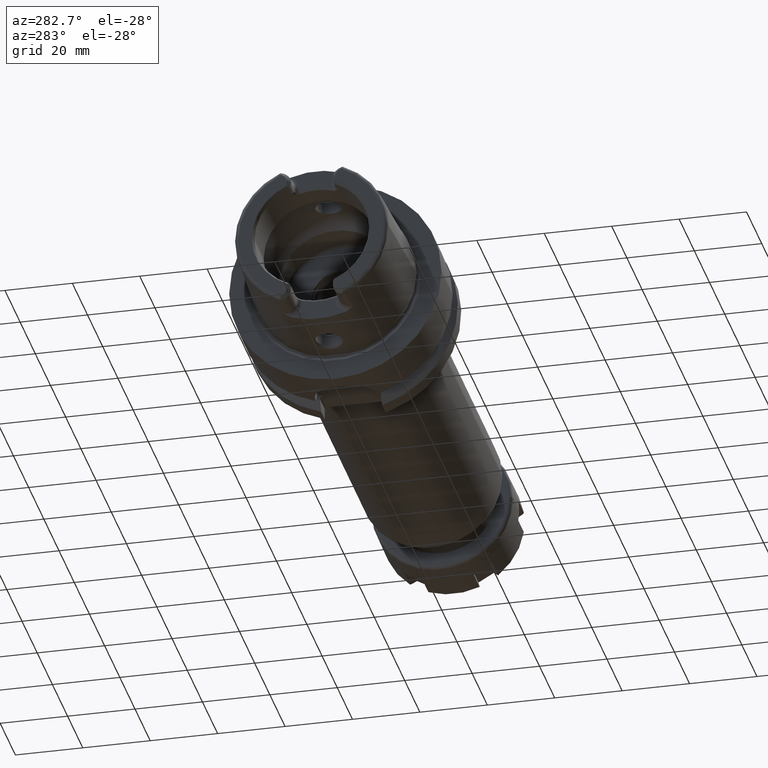
[diagram: clean part render]
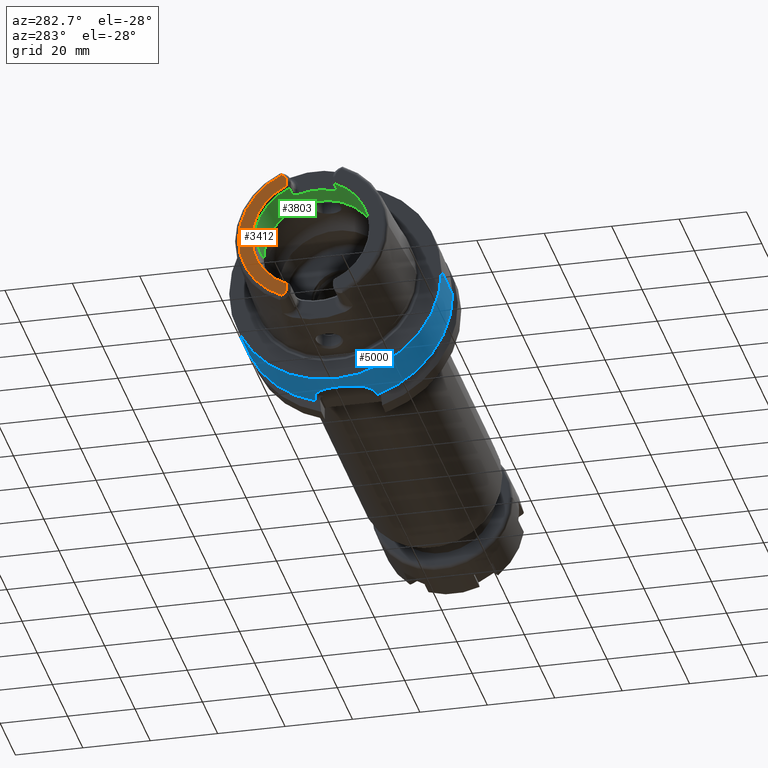
[diagram: same view with three faces highlighted in distinct colors, each labeled with its STEP entity id]
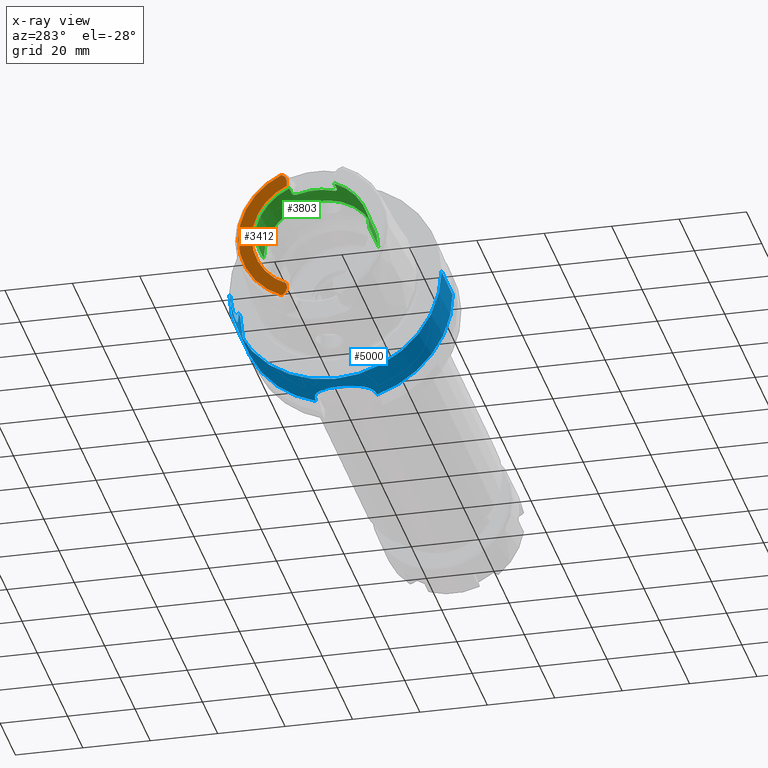
[diagram: x-ray of the same camera — body ghosted, the three highlighted faces saturated]
A machine part, auxiliary view with three faces highlighted in distinct colors.
The next image is the same camera in x-ray (body ghosted, the three faces saturated) — at least one of them is partly hidden behind the body in this view.
Their STEP definitions:

[orange] entity #3412 — the highlighted planar face has unit normal (1, 0, 0).
#215=CARTESIAN_POINT('',(-3.2E1,0.E0,0.E0));
#216=DIRECTION('',(-1.E0,0.E0,0.E0));
#217=DIRECTION('',(0.E0,4.056746540583E-1,9.140175463604E-1));
#218=AXIS2_PLACEMENT_3D('',#215,#216,#217);
#289=DIRECTION('',(0.E0,0.E0,1.E0));
#290=VECTOR('',#289,1.666552168805E0);
#291=CARTESIAN_POINT('',(-3.2E1,7.27E0,-1.767E1));
#292=LINE('',#291,#290);
#293=CARTESIAN_POINT('',(-3.2E1,9.27E0,-1.767E1));
#294=DIRECTION('',(1.E0,0.E0,0.E0));
#295=DIRECTION('',(0.E0,-1.E0,0.E0));
#296=AXIS2_PLACEMENT_3D('',#293,#294,#295);
#298=DIRECTION('',(0.E0,-8.373245684230E-1,5.467061067112E-1));
#299=VECTOR('',#298,6.882400885956E-1);
#300=CARTESIAN_POINT('',(-3.2E1,8.752868121732E0,-1.972091419616E1));
#301=LINE('',#300,#299);
#302=DIRECTION('',(0.E0,-8.373245684230E-1,-5.467061067112E-1));
#303=VECTOR('',#302,6.882400885957E-1);
#304=CARTESIAN_POINT('',(-3.2E1,8.752868121732E0,1.972091419616E1));
#305=LINE('',#304,#303);
#306=CARTESIAN_POINT('',(-3.2E1,9.27E0,1.767E1));
#307=DIRECTION('',(-1.E0,0.E0,0.E0));
#308=DIRECTION('',(0.E0,-1.E0,0.E0));
#309=AXIS2_PLACEMENT_3D('',#306,#307,#308);
#311=DIRECTION('',(0.E0,0.E0,1.E0));
#312=VECTOR('',#311,1.666552168805E0);
#313=CARTESIAN_POINT('',(-3.2E1,7.27E0,1.600344783120E1));
#314=LINE('',#313,#312);
#346=CARTESIAN_POINT('',(-3.2E1,0.E0,0.E0));
#347=DIRECTION('',(1.E0,0.E0,0.E0));
#348=DIRECTION('',(0.E0,4.136004510727E-1,-9.104584926686E-1));
#349=AXIS2_PLACEMENT_3D('',#346,#347,#348);
#2798=CARTESIAN_POINT('',(-3.2E1,7.27E0,1.600344783120E1));
#2799=CARTESIAN_POINT('',(-3.2E1,7.27E0,1.767E1));
#2800=VERTEX_POINT('',#2798);
#2801=VERTEX_POINT('',#2799);
#2802=CARTESIAN_POINT('',(-3.2E1,8.176587786578E0,1.934464913685E1));
#2803=VERTEX_POINT('',#2802);
#2804=CARTESIAN_POINT('',(-3.2E1,8.752868121732E0,1.972091419616E1));
#2805=VERTEX_POINT('',#2804);
#2894=CARTESIAN_POINT('',(-3.2E1,7.27E0,-1.767E1));
#2895=CARTESIAN_POINT('',(-3.2E1,7.27E0,-1.600344783120E1));
#2896=VERTEX_POINT('',#2894);
#2897=VERTEX_POINT('',#2895);
#2898=CARTESIAN_POINT('',(-3.2E1,8.176587786578E0,-1.934464913685E1));
#2899=VERTEX_POINT('',#2898);
#2900=CARTESIAN_POINT('',(-3.2E1,8.752868121732E0,-1.972091419616E1));
#2901=VERTEX_POINT('',#2900);
#3391=CARTESIAN_POINT('',(-3.2E1,0.E0,0.E0));
#3392=DIRECTION('',(1.E0,0.E0,0.E0));
#3393=DIRECTION('',(0.E0,-1.E0,0.E0));
#3394=AXIS2_PLACEMENT_3D('',#3391,#3392,#3393);
#3395=PLANE('',#3394);
#3397=ORIENTED_EDGE('',*,*,#3396,.F.);
#3399=ORIENTED_EDGE('',*,*,#3398,.T.);
#3400=ORIENTED_EDGE('',*,*,#3381,.F.);
#3401=ORIENTED_EDGE('',*,*,#3348,.F.);
#3403=ORIENTED_EDGE('',*,*,#3402,.T.);
#3405=ORIENTED_EDGE('',*,*,#3404,.F.);
#3407=ORIENTED_EDGE('',*,*,#3406,.F.);
#3409=ORIENTED_EDGE('',*,*,#3408,.F.);
#3410=EDGE_LOOP('',(#3397,#3399,#3400,#3401,#3403,#3405,#3407,#3409));
#3411=FACE_OUTER_BOUND('',#3410,.F.);
#3412=ADVANCED_FACE('',(#3411),#3395,.F.);
#219=CIRCLE('',#218,2.157607835286E1);
#297=CIRCLE('',#296,2.E0);
#310=CIRCLE('',#309,2.E0);
#350=CIRCLE('',#349,1.757735026919E1);
#3348=EDGE_CURVE('',#2805,#2901,#219,.T.);
#3381=EDGE_CURVE('',#2901,#2899,#301,.T.);
#3396=EDGE_CURVE('',#2896,#2897,#292,.T.);
#3398=EDGE_CURVE('',#2896,#2899,#297,.T.);
#3402=EDGE_CURVE('',#2805,#2803,#305,.T.);
#3404=EDGE_CURVE('',#2801,#2803,#310,.T.);
#3406=EDGE_CURVE('',#2800,#2801,#314,.T.);
#3408=EDGE_CURVE('',#2897,#2800,#350,.T.);

[blue] entity #5000 — the highlighted cylindrical surface (partial cylindrical patch) has radius 31.5 mm, axis along (1, 0, 0).
#1073=CARTESIAN_POINT('',(-1.421085471520E-14,0.E0,0.E0));
#1074=DIRECTION('',(-1.E0,0.E0,0.E0));
#1075=DIRECTION('',(0.E0,1.E0,0.E0));
#1076=AXIS2_PLACEMENT_3D('',#1073,#1074,#1075);
#1124=CARTESIAN_POINT('',(2.E0,3.15E1,-1.916034746595E-14));
#1126=CARTESIAN_POINT('',(1.2E1,3.15E1,0.E0));
#1696=CARTESIAN_POINT('',(1.39675E1,9.0175E0,-3.018169467989E1));
#1697=CARTESIAN_POINT('',(1.358558656281E1,9.0175E0,-3.018169467989E1));
#1698=CARTESIAN_POINT('',(1.282118465468E1,8.969691357916E0,-3.019604517684E1));
#1699=CARTESIAN_POINT('',(1.165591828593E1,8.743491566228E0,-3.026274300150E1));
#1700=CARTESIAN_POINT('',(1.052276298313E1,8.361963120688E0,-3.037104920547E1));
#1701=CARTESIAN_POINT('',(9.456122836012E0,7.837772025634E0,-3.051135915032E1));
#1702=CARTESIAN_POINT('',(8.470252282138E0,7.180724754911E0,-3.067358430769E1));
#1703=CARTESIAN_POINT('',(7.575631308163E0,6.398050863983E0,-3.084741609441E1));
#1704=CARTESIAN_POINT('',(6.786194961893E0,5.497065304782E0,-3.102161724462E1));
#1705=CARTESIAN_POINT('',(6.130229967676E0,4.511622175765E0,-3.118093411543E1));
#1706=CARTESIAN_POINT('',(5.609342792779E0,3.453031312959E0,-3.131662634576E1));
#1707=CARTESIAN_POINT('',(5.228345621102E0,2.326812347583E0,-3.142101017036E1));
#1708=CARTESIAN_POINT('',(4.999797746036E0,1.164288452435E0,-3.148568890825E1));
#1709=CARTESIAN_POINT('',(4.925086592477E0,-1.642939922344E-4,
-3.150715972921E1));
#1710=CARTESIAN_POINT('',(4.999855898167E0,-1.164866928839E0,
-3.148567217088E1));
#1711=CARTESIAN_POINT('',(5.228566513789E0,-2.327652949522E0,
-3.142094829471E1));
#1712=CARTESIAN_POINT('',(5.609617740094E0,-3.453657849156E0,
-3.131655310854E1));
#1713=CARTESIAN_POINT('',(6.130421690937E0,-4.511937610781E0,
-3.118088635565E1));
#1714=CARTESIAN_POINT('',(6.786402135999E0,-5.497346241188E0,
-3.102156844966E1));
#1715=CARTESIAN_POINT('',(7.576014991373E0,-6.398444919226E0,
-3.084733497918E1));
#1716=CARTESIAN_POINT('',(8.470738074749E0,-7.181093772441E0,
-3.067349724349E1));
#1717=CARTESIAN_POINT('',(9.456668390199E0,-7.838101066607E0,
-3.051127521442E1));
#1718=CARTESIAN_POINT('',(1.052385858790E1,-8.362443708215E0,
-3.037091729406E1));
#1719=CARTESIAN_POINT('',(1.165737665338E1,-8.743869582945E0,
-3.026263280158E1));
#1720=CARTESIAN_POINT('',(1.282210884292E1,-8.969775642486E0,
-3.019601972103E1));
#1721=CARTESIAN_POINT('',(1.358595047E1,-9.0175E0,-3.018169467989E1));
#1722=CARTESIAN_POINT('',(1.39675E1,-9.0175E0,-3.018169467989E1));
#1724=DIRECTION('',(1.E0,0.E0,0.E0));
#1725=VECTOR('',#1724,6.550009252407E-1);
#1726=CARTESIAN_POINT('',(1.39675E1,9.0175E0,-3.018169467989E1));
#1727=LINE('',#1726,#1725);
#1728=CARTESIAN_POINT('',(1.462250092524E1,0.E0,0.E0));
#1729=DIRECTION('',(1.E0,0.E0,0.E0));
#1730=DIRECTION('',(0.E0,2.862698412698E-1,-9.581490374568E-1));
#1731=AXIS2_PLACEMENT_3D('',#1728,#1729,#1730);
#1733=DIRECTION('',(-1.E0,0.E0,0.E0));
#1734=VECTOR('',#1733,2.622500925241E0);
#1735=CARTESIAN_POINT('',(1.462250092524E1,3.15E1,0.E0));
#1736=LINE('',#1735,#1734);
#1737=CARTESIAN_POINT('',(7.E0,3.110064308017E1,-5.E0));
#1738=CARTESIAN_POINT('',(7.237711971861E0,3.110064308017E1,-5.E0));
#1739=CARTESIAN_POINT('',(7.708364793932E0,3.110604176585E1,-4.966603280739E0));
#1740=CARTESIAN_POINT('',(8.409071627816E0,3.113002370339E1,-4.815048141531E0));
#1741=CARTESIAN_POINT('',(9.077383280619E0,3.116768201896E1,-4.566768250610E0));
#1742=CARTESIAN_POINT('',(9.709737219660E0,3.121653000009E1,-4.222389763166E0));
#1743=CARTESIAN_POINT('',(1.028259694179E1,3.127184472959E1,-3.794310232818E0));
#1744=CARTESIAN_POINT('',(1.079381736502E1,3.133002109497E1,-3.283144879213E0));
#1745=CARTESIAN_POINT('',(1.122187341968E1,3.138511895323E1,-2.710559209569E0));
#1746=CARTESIAN_POINT('',(1.156650397528E1,3.143365111660E1,-2.077946235915E0));
#1747=CARTESIAN_POINT('',(1.181475018474E1,3.147092885130E1,-1.410108381556E0));
#1748=CARTESIAN_POINT('',(1.196660689769E1,3.149467147123E1,
-7.086190467967E-1));
#1749=CARTESIAN_POINT('',(1.2E1,3.15E1,-2.377578867780E-1));
#1750=CARTESIAN_POINT('',(1.2E1,3.15E1,0.E0));
#1752=CARTESIAN_POINT('',(2.E0,3.15E1,-1.916034746595E-14));
#1753=CARTESIAN_POINT('',(2.E0,3.15E1,-2.377563632343E-1));
#1754=CARTESIAN_POINT('',(2.033376819090E0,3.149467390288E1,
-7.086329282889E-1));
#1755=CARTESIAN_POINT('',(2.185379667149E0,3.147090888892E1,-1.410571551366E0));
#1756=CARTESIAN_POINT('',(2.433605027219E0,3.143363519165E1,-2.078170817110E0));
#1757=CARTESIAN_POINT('',(2.778328809062E0,3.138509141893E1,-2.710884364051E0));
#1758=CARTESIAN_POINT('',(3.206392404829E0,3.132999596018E1,-3.283376693298E0));
#1759=CARTESIAN_POINT('',(3.717592314676E0,3.127182433739E1,-3.794478939285E0));
#1760=CARTESIAN_POINT('',(4.290556434518E0,3.121650481486E1,-4.222574092482E0));
#1761=CARTESIAN_POINT('',(4.922767506481E0,3.116767216438E1,-4.566833856024E0));
#1762=CARTESIAN_POINT('',(5.591173550853E0,3.113001241939E1,-4.815121163512E0));
#1763=CARTESIAN_POINT('',(6.291762024521E0,3.110604002637E1,-4.966613612597E0));
#1764=CARTESIAN_POINT('',(6.762337956938E0,3.110064308017E1,-5.E0));
#1765=CARTESIAN_POINT('',(7.E0,3.110064308017E1,-5.E0));
#1767=DIRECTION('',(-1.E0,0.E0,1.086605287208E-14));
#1768=VECTOR('',#1767,2.E0);
#1769=CARTESIAN_POINT('',(2.E0,3.15E1,-1.916034746595E-14));
#1770=LINE('',#1769,#1768);
#1771=DIRECTION('',(-1.E0,0.E0,0.E0));
#1772=VECTOR('',#1771,1.462250092524E1);
#1773=CARTESIAN_POINT('',(1.462250092524E1,-3.15E1,0.E0));
#1774=LINE('',#1773,#1772);
#1775=CARTESIAN_POINT('',(1.462250092524E1,0.E0,0.E0));
#1776=DIRECTION('',(1.E0,0.E0,0.E0));
#1777=DIRECTION('',(0.E0,-1.E0,0.E0));
#1778=AXIS2_PLACEMENT_3D('',#1775,#1776,#1777);
#1780=DIRECTION('',(1.E0,0.E0,0.E0));
#1781=VECTOR('',#1780,6.550009252407E-1);
#1782=CARTESIAN_POINT('',(1.39675E1,-9.0175E0,-3.018169467989E1));
#1783=LINE('',#1782,#1781);
#2707=CARTESIAN_POINT('',(-1.421085471520E-14,3.15E1,0.E0));
#2708=CARTESIAN_POINT('',(-1.421085471520E-14,-3.15E1,0.E0));
#2709=VERTEX_POINT('',#2707);
#2710=VERTEX_POINT('',#2708);
#2928=CARTESIAN_POINT('',(1.462250092524E1,-3.15E1,0.E0));
#2929=VERTEX_POINT('',#2928);
#2956=CARTESIAN_POINT('',(7.E0,3.110064308017E1,-5.E0));
#2957=VERTEX_POINT('',#2956);
#2958=VERTEX_POINT('',#1124);
#2959=VERTEX_POINT('',#1126);
#2960=CARTESIAN_POINT('',(1.462250092524E1,3.15E1,0.E0));
#2961=VERTEX_POINT('',#2960);
#3048=CARTESIAN_POINT('',(1.39675E1,-9.0175E0,-3.018169467989E1));
#3049=VERTEX_POINT('',#3048);
#3050=CARTESIAN_POINT('',(1.39675E1,9.0175E0,-3.018169467989E1));
#3051=VERTEX_POINT('',#3050);
#3086=CARTESIAN_POINT('',(1.462250092524E1,9.0175E0,-3.018169467989E1));
#3087=VERTEX_POINT('',#3086);
#3088=CARTESIAN_POINT('',(1.462250092524E1,-9.0175E0,-3.018169467989E1));
#3089=VERTEX_POINT('',#3088);
#4977=CARTESIAN_POINT('',(-3.49E1,0.E0,0.E0));
#4978=DIRECTION('',(1.E0,0.E0,0.E0));
#4979=DIRECTION('',(0.E0,-1.E0,0.E0));
#4980=AXIS2_PLACEMENT_3D('',#4977,#4978,#4979);
#4981=CYLINDRICAL_SURFACE('',#4980,3.15E1);
#4983=ORIENTED_EDGE('',*,*,#4982,.F.);
#4984=ORIENTED_EDGE('',*,*,#4628,.T.);
#4986=ORIENTED_EDGE('',*,*,#4985,.T.);
#4987=ORIENTED_EDGE('',*,*,#4486,.T.);
#4989=ORIENTED_EDGE('',*,*,#4988,.F.);
#4991=ORIENTED_EDGE('',*,*,#4990,.F.);
#4992=ORIENTED_EDGE('',*,*,#4480,.T.);
#4993=ORIENTED_EDGE('',*,*,#4455,.T.);
#4994=ORIENTED_EDGE('',*,*,#4477,.F.);
#4996=ORIENTED_EDGE('',*,*,#4995,.T.);
#4997=ORIENTED_EDGE('',*,*,#4841,.F.);
#4998=EDGE_LOOP('',(#4983,#4984,#4986,#4987,#4989,#4991,#4992,#4993,#4994,#4996,
#4997));
#4999=FACE_OUTER_BOUND('',#4998,.F.);
#5000=ADVANCED_FACE('',(#4999),#4981,.T.);
#1077=CIRCLE('',#1076,3.15E1);
#1723=B_SPLINE_CURVE_WITH_KNOTS('',3,(#1696,#1697,#1698,#1699,#1700,#1701,#1702,
#1703,#1704,#1705,#1706,#1707,#1708,#1709,#1710,#1711,#1712,#1713,#1714,#1715,
#1716,#1717,#1718,#1719,#1720,#1721,#1722),.UNSPECIFIED.,.F.,.F.,(4,1,1,1,1,1,1,
1,1,1,1,1,1,1,1,1,1,1,1,1,1,1,1,1,4),(0.E0,4.166666666667E-2,8.333333333333E-2,
1.25E-1,1.666666666667E-1,2.083333333333E-1,2.5E-1,2.916666666667E-1,
3.333333333333E-1,3.75E-1,4.166666666667E-1,4.583333333333E-1,5.E-1,
5.416666666667E-1,5.833333333333E-1,6.25E-1,6.666666666667E-1,7.083333333333E-1,
7.5E-1,7.916666666667E-1,8.333333333333E-1,8.75E-1,9.166666666667E-1,
9.583333333333E-1,1.E0),.UNSPECIFIED.);
#1732=CIRCLE('',#1731,3.15E1);
#1751=B_SPLINE_CURVE_WITH_KNOTS('',3,(#1737,#1738,#1739,#1740,#1741,#1742,#1743,
#1744,#1745,#1746,#1747,#1748,#1749,#1750),.UNSPECIFIED.,.F.,.F.,(4,1,1,1,1,1,1,
1,1,1,1,4),(0.E0,9.090909090909E-2,1.818181818182E-1,2.727272727273E-1,
3.636363636364E-1,4.545454545455E-1,5.454545454545E-1,6.363636363636E-1,
7.272727272727E-1,8.181818181818E-1,9.090909090909E-1,1.E0),.UNSPECIFIED.);
#1766=B_SPLINE_CURVE_WITH_KNOTS('',3,(#1752,#1753,#1754,#1755,#1756,#1757,#1758,
#1759,#1760,#1761,#1762,#1763,#1764,#1765),.UNSPECIFIED.,.F.,.F.,(4,1,1,1,1,1,1,
1,1,1,1,4),(0.E0,9.090909090909E-2,1.818181818182E-1,2.727272727273E-1,
3.636363636364E-1,4.545454545455E-1,5.454545454545E-1,6.363636363636E-1,
7.272727272727E-1,8.181818181818E-1,9.090909090909E-1,1.E0),.UNSPECIFIED.);
#1779=CIRCLE('',#1778,3.15E1);
#4455=EDGE_CURVE('',#2709,#2710,#1077,.T.);
#4477=EDGE_CURVE('',#2929,#2710,#1774,.T.);
#4480=EDGE_CURVE('',#2958,#2709,#1770,.T.);
#4486=EDGE_CURVE('',#2961,#2959,#1736,.T.);
#4628=EDGE_CURVE('',#3051,#3087,#1727,.T.);
#4841=EDGE_CURVE('',#3049,#3089,#1783,.T.);
#4982=EDGE_CURVE('',#3051,#3049,#1723,.T.);
#4985=EDGE_CURVE('',#3087,#2961,#1732,.T.);
#4988=EDGE_CURVE('',#2957,#2959,#1751,.T.);
#4990=EDGE_CURVE('',#2958,#2957,#1766,.T.);
#4995=EDGE_CURVE('',#2929,#3089,#1779,.T.);

[green] entity #3803 — the highlighted cylindrical surface (partial cylindrical patch) has radius 17 mm, axis along (1, 0, 0).
#362=CARTESIAN_POINT('',(-3.1E1,0.E0,0.E0));
#363=DIRECTION('',(1.E0,0.E0,0.E0));
#364=DIRECTION('',(0.E0,1.E0,0.E0));
#365=AXIS2_PLACEMENT_3D('',#362,#363,#364);
#394=CARTESIAN_POINT('',(-3.1E1,0.E0,0.E0));
#395=DIRECTION('',(1.E0,0.E0,0.E0));
#396=DIRECTION('',(0.E0,-3.910839598454E-1,9.203550056102E-1));
#397=AXIS2_PLACEMENT_3D('',#394,#395,#396);
#559=DIRECTION('',(1.E0,0.E0,0.E0));
#560=VECTOR('',#559,3.5E0);
#561=CARTESIAN_POINT('',(-3.1E1,6.648427317371E0,1.564603509537E1));
#562=LINE('',#561,#560);
#563=CARTESIAN_POINT('',(-2.571132486541E1,4.77E0,1.631708000838E1));
#564=CARTESIAN_POINT('',(-2.570911463045E1,4.851899929325E0,1.629313806150E1));
#565=CARTESIAN_POINT('',(-2.571539985496E1,5.014300274441E0,1.624433189365E1));
#566=CARTESIAN_POINT('',(-2.575723226820E1,5.255574737127E0,1.616786516493E1));
#567=CARTESIAN_POINT('',(-2.583019759937E1,5.488813832187E0,1.609012650164E1));
#568=CARTESIAN_POINT('',(-2.593222755914E1,5.709311810621E0,1.601314455534E1));
#569=CARTESIAN_POINT('',(-2.606208908479E1,5.913640570765E0,1.593873381343E1));
#570=CARTESIAN_POINT('',(-2.621579663552E1,6.097621457296E0,1.586916363348E1));
#571=CARTESIAN_POINT('',(-2.639004084082E1,6.257927374534E0,1.580654307494E1));
#572=CARTESIAN_POINT('',(-2.658287946713E1,6.394281114327E0,1.575179653388E1));
#573=CARTESIAN_POINT('',(-2.679414325254E1,6.504885265694E0,1.570637036291E1));
#574=CARTESIAN_POINT('',(-2.702072491693E1,6.586740689310E0,1.567215753589E1));
#575=CARTESIAN_POINT('',(-2.725841410654E1,6.637201205541E0,1.565081274977E1));
#576=CARTESIAN_POINT('',(-2.741884128981E1,6.648427317371E0,1.564603509537E1));
#577=CARTESIAN_POINT('',(-2.75E1,6.648427317371E0,1.564603509537E1));
#579=CARTESIAN_POINT('',(-2.571132486541E1,-4.77E0,1.631708000838E1));
#580=CARTESIAN_POINT('',(-2.571132486541E1,-4.151241293882E0,1.649796280277E1));
#581=CARTESIAN_POINT('',(-2.571132889067E1,-2.893125957956E0,1.678926713017E1));
#582=CARTESIAN_POINT('',(-2.571132738120E1,-9.685489423330E-1,
1.700915920873E1));
#583=CARTESIAN_POINT('',(-2.571132738120E1,9.685489423332E-1,1.700915920873E1));
#584=CARTESIAN_POINT('',(-2.571132889067E1,2.893125957955E0,1.678926713017E1));
#585=CARTESIAN_POINT('',(-2.571132486541E1,4.151241293884E0,1.649796280277E1));
#586=CARTESIAN_POINT('',(-2.571132486541E1,4.77E0,1.631708000838E1));
#588=CARTESIAN_POINT('',(-2.75E1,-6.648427317371E0,1.564603509537E1));
#589=CARTESIAN_POINT('',(-2.741886739757E1,-6.648427317371E0,1.564603509537E1));
#590=CARTESIAN_POINT('',(-2.725846026145E1,-6.637216591931E0,1.565080624648E1));
#591=CARTESIAN_POINT('',(-2.702047669465E1,-6.586680175792E0,1.567218311946E1));
#592=CARTESIAN_POINT('',(-2.679396033382E1,-6.504789416100E0,1.570640995358E1));
#593=CARTESIAN_POINT('',(-2.658322850975E1,-6.394447887183E0,1.575172726773E1));
#594=CARTESIAN_POINT('',(-2.639118887217E1,-6.258799446744E0,1.580619508840E1));
#595=CARTESIAN_POINT('',(-2.621738949273E1,-6.099242016698E0,1.586853752436E1));
#596=CARTESIAN_POINT('',(-2.606384631874E1,-5.916012648986E0,1.593785105703E1));
#597=CARTESIAN_POINT('',(-2.593366664869E1,-5.711955003317E0,1.601220141386E1));
#598=CARTESIAN_POINT('',(-2.583107108488E1,-5.491206341112E0,1.608931480424E1));
#599=CARTESIAN_POINT('',(-2.575746962839E1,-5.256749499660E0,1.616748882623E1));
#600=CARTESIAN_POINT('',(-2.571543732099E1,-5.014873021211E0,1.624415783103E1));
#601=CARTESIAN_POINT('',(-2.570911008721E1,-4.852068278437E0,1.629308884771E1));
#602=CARTESIAN_POINT('',(-2.571132486541E1,-4.77E0,1.631708000838E1));
#604=DIRECTION('',(1.E0,0.E0,0.E0));
#605=VECTOR('',#604,3.5E0);
#606=CARTESIAN_POINT('',(-3.1E1,-6.648427317371E0,1.564603509537E1));
#607=LINE('',#606,#605);
#608=CARTESIAN_POINT('',(-1.899602540378E1,0.E0,0.E0));
#609=DIRECTION('',(1.E0,0.E0,0.E0));
#610=DIRECTION('',(0.E0,1.E0,0.E0));
#611=AXIS2_PLACEMENT_3D('',#608,#609,#610);
#666=DIRECTION('',(-1.E0,0.E0,0.E0));
#667=VECTOR('',#666,1.200397459622E1);
#668=CARTESIAN_POINT('',(-1.899602540378E1,1.7E1,0.E0));
#669=LINE('',#668,#667);
#675=DIRECTION('',(-1.E0,0.E0,0.E0));
#676=VECTOR('',#675,1.200397459622E1);
#677=CARTESIAN_POINT('',(-1.899602540378E1,-1.7E1,0.E0));
#678=LINE('',#677,#676);
#2755=CARTESIAN_POINT('',(-1.899602540378E1,1.7E1,0.E0));
#2756=VERTEX_POINT('',#2755);
#2757=CARTESIAN_POINT('',(-3.1E1,1.7E1,0.E0));
#2758=VERTEX_POINT('',#2757);
#2767=CARTESIAN_POINT('',(-1.899602540378E1,-1.7E1,0.E0));
#2768=VERTEX_POINT('',#2767);
#2769=CARTESIAN_POINT('',(-3.1E1,-1.7E1,0.E0));
#2770=VERTEX_POINT('',#2769);
#2836=CARTESIAN_POINT('',(-2.75E1,6.648427317371E0,1.564603509537E1));
#2837=VERTEX_POINT('',#2836);
#2838=CARTESIAN_POINT('',(-2.571132486541E1,4.77E0,1.631708000838E1));
#2839=VERTEX_POINT('',#2838);
#2840=CARTESIAN_POINT('',(-2.75E1,-6.648427317371E0,1.564603509537E1));
#2841=VERTEX_POINT('',#2840);
#2842=CARTESIAN_POINT('',(-2.571132486541E1,-4.77E0,1.631708000838E1));
#2843=VERTEX_POINT('',#2842);
#2848=CARTESIAN_POINT('',(-3.1E1,6.648427317371E0,1.564603509537E1));
#2849=VERTEX_POINT('',#2848);
#2850=CARTESIAN_POINT('',(-3.1E1,-6.648427317371E0,1.564603509537E1));
#2851=VERTEX_POINT('',#2850);
#3782=CARTESIAN_POINT('',(-3.41E1,0.E0,0.E0));
#3783=DIRECTION('',(1.E0,0.E0,0.E0));
#3784=DIRECTION('',(0.E0,-1.E0,0.E0));
#3785=AXIS2_PLACEMENT_3D('',#3782,#3783,#3784);
#3786=CYLINDRICAL_SURFACE('',#3785,1.7E1);
#3787=ORIENTED_EDGE('',*,*,#3519,.T.);
#3789=ORIENTED_EDGE('',*,*,#3788,.F.);
#3790=ORIENTED_EDGE('',*,*,#3667,.F.);
#3791=ORIENTED_EDGE('',*,*,#3722,.F.);
#3792=ORIENTED_EDGE('',*,*,#3737,.F.);
#3793=ORIENTED_EDGE('',*,*,#3484,.T.);
#3795=ORIENTED_EDGE('',*,*,#3794,.F.);
#3797=ORIENTED_EDGE('',*,*,#3796,.F.);
#3799=ORIENTED_EDGE('',*,*,#3798,.T.);
#3800=ORIENTED_EDGE('',*,*,#3464,.T.);
#3801=EDGE_LOOP('',(#3787,#3789,#3790,#3791,#3792,#3793,#3795,#3797,#3799,
#3800));
#3802=FACE_OUTER_BOUND('',#3801,.F.);
#3803=ADVANCED_FACE('',(#3802),#3786,.F.);
#366=CIRCLE('',#365,1.7E1);
#398=CIRCLE('',#397,1.7E1);
#578=B_SPLINE_CURVE_WITH_KNOTS('',3,(#563,#564,#565,#566,#567,#568,#569,#570,
#571,#572,#573,#574,#575,#576,#577),.UNSPECIFIED.,.F.,.F.,(4,1,1,1,1,1,1,1,1,1,
1,1,4),(0.E0,8.333333333333E-2,1.666666666667E-1,2.5E-1,3.333333333333E-1,
4.166666666667E-1,5.E-1,5.833333333333E-1,6.666666666667E-1,7.5E-1,
8.333333333333E-1,9.166666666667E-1,1.E0),.UNSPECIFIED.);
#587=B_SPLINE_CURVE_WITH_KNOTS('',3,(#579,#580,#581,#582,#583,#584,#585,#586),
.UNSPECIFIED.,.F.,.F.,(4,1,1,1,1,4),(0.E0,2.E-1,4.E-1,6.E-1,8.E-1,1.E0),
.UNSPECIFIED.);
#603=B_SPLINE_CURVE_WITH_KNOTS('',3,(#588,#589,#590,#591,#592,#593,#594,#595,
#596,#597,#598,#599,#600,#601,#602),.UNSPECIFIED.,.F.,.F.,(4,1,1,1,1,1,1,1,1,1,
1,1,4),(0.E0,8.333333333333E-2,1.666666666667E-1,2.5E-1,3.333333333333E-1,
4.166666666667E-1,5.E-1,5.833333333333E-1,6.666666666667E-1,7.5E-1,
8.333333333333E-1,9.166666666667E-1,1.E0),.UNSPECIFIED.);
#612=CIRCLE('',#611,1.7E1);
#3464=EDGE_CURVE('',#2758,#2849,#366,.T.);
#3484=EDGE_CURVE('',#2851,#2770,#398,.T.);
#3519=EDGE_CURVE('',#2849,#2837,#562,.T.);
#3667=EDGE_CURVE('',#2843,#2839,#587,.T.);
#3722=EDGE_CURVE('',#2841,#2843,#603,.T.);
#3737=EDGE_CURVE('',#2851,#2841,#607,.T.);
#3788=EDGE_CURVE('',#2839,#2837,#578,.T.);
#3794=EDGE_CURVE('',#2768,#2770,#678,.T.);
#3796=EDGE_CURVE('',#2756,#2768,#612,.T.);
#3798=EDGE_CURVE('',#2756,#2758,#669,.T.);